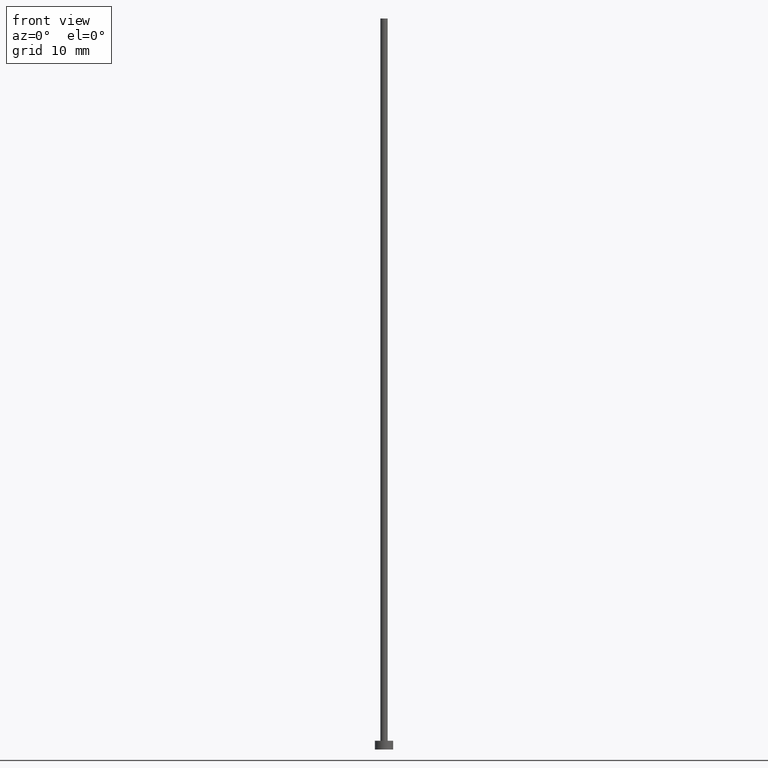
[diagram: clean part render]
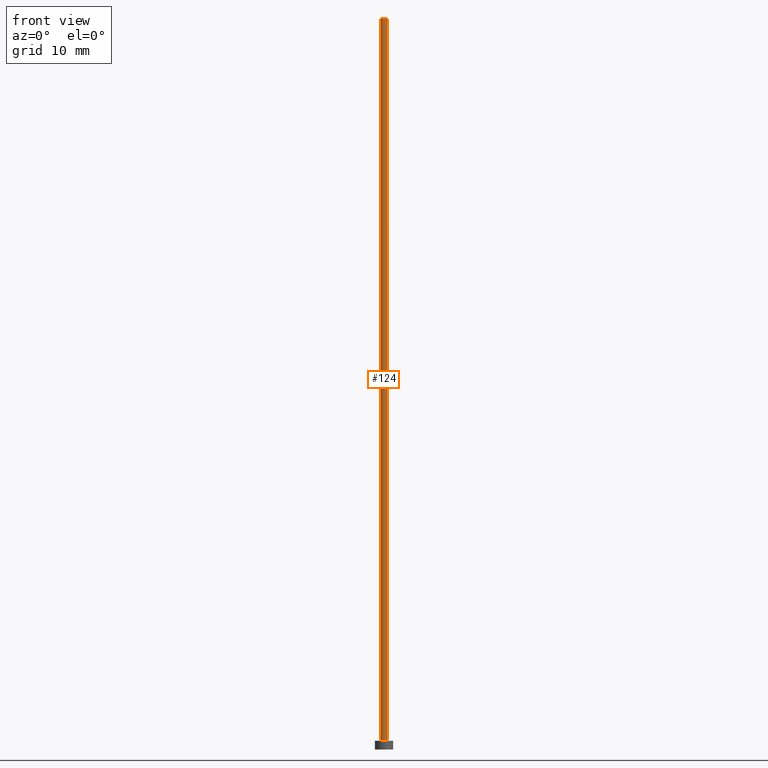
[diagram: same view with one face highlighted and labeled with its STEP entity id]
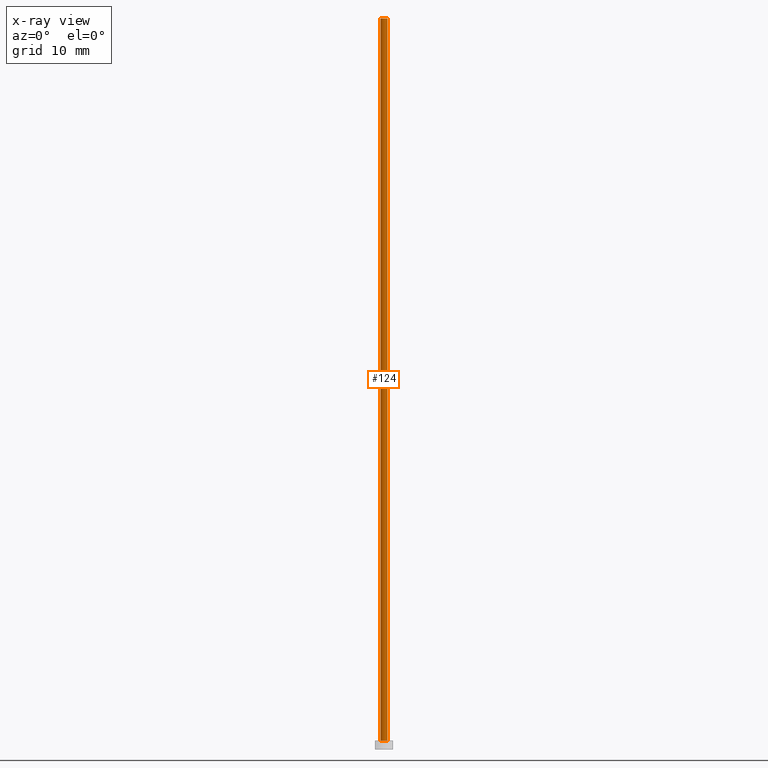
[diagram: x-ray of the same camera — body ghosted, the highlighted face saturated]
A machine part, front view. The second image highlights one B-rep face of the part: STEP entity #124.
The next image is the same camera in x-ray: the body ghosted, the highlighted face saturated — about 0% of this face is hidden behind the body in this view.
In plain terms, the highlighted cylindrical surface (edge-blend (fillet) strip) has radius 0.5 mm, axis along (-0, -0, -1).
Its self-contained STEP definition (entity closure, byte-faithful):
#12 = CARTESIAN_POINT ( 'NONE',  ( 0.000000000000000000, 0.000000000000000000, 1.199999999999999956 ) ) ;
#31 = VECTOR ( 'NONE', #133, 1000.000000000000000 ) ;
#43 = ORIENTED_EDGE ( 'NONE', *, *, #221, .F. ) ;
#48 = ORIENTED_EDGE ( 'NONE', *, *, #174, .T. ) ;
#49 = DIRECTION ( 'NONE',  ( 0.000000000000000000, 0.000000000000000000, 1.000000000000000000 ) ) ;
#52 = CARTESIAN_POINT ( 'NONE',  ( 0.000000000000000000, 0.000000000000000000, 100.0000000000000000 ) ) ;
#53 = CARTESIAN_POINT ( 'NONE',  ( 0.000000000000000000, 0.000000000000000000, 100.0000000000000000 ) ) ;
#54 = DIRECTION ( 'NONE',  ( 1.000000000000000000, 0.000000000000000000, 0.000000000000000000 ) ) ;
#65 = EDGE_CURVE ( 'NONE', #204, #239, #111, .T. ) ;
#73 = FACE_OUTER_BOUND ( 'NONE', #243, .T. ) ;
#79 = DIRECTION ( 'NONE',  ( -0.000000000000000000, -0.000000000000000000, -1.000000000000000000 ) ) ;
#91 = CARTESIAN_POINT ( 'NONE',  ( -0.5000000000000000000, 0.000000000000000000, 100.0000000000000000 ) ) ;
#99 = CIRCLE ( 'NONE', #167, 0.5000000000000000000 ) ;
#110 = LINE ( 'NONE', #188, #143 ) ;
#111 = CIRCLE ( 'NONE', #116, 0.5000000000000000000 ) ;
#114 = LINE ( 'NONE', #155, #31 ) ;
#116 = AXIS2_PLACEMENT_3D ( 'NONE', #12, #49, #54 ) ;
#124 = ADVANCED_FACE ( 'NONE', ( #73 ), #154, .T. ) ;
#132 = CARTESIAN_POINT ( 'NONE',  ( 0.5000000000000000000, 6.123233995736766036E-17, 100.0000000000000000 ) ) ;
#133 = DIRECTION ( 'NONE',  ( -0.000000000000000000, -0.000000000000000000, -1.000000000000000000 ) ) ;
#143 = VECTOR ( 'NONE', #186, 1000.000000000000000 ) ;
#149 = DIRECTION ( 'NONE',  ( -1.000000000000000000, 0.000000000000000000, 0.000000000000000000 ) ) ;
#154 = CYLINDRICAL_SURFACE ( 'NONE', #195, 0.5000000000000000000 ) ;
#155 = CARTESIAN_POINT ( 'NONE',  ( 0.5000000000000000000, 6.123233995736766036E-17, 100.0000000000000000 ) ) ;
#160 = CARTESIAN_POINT ( 'NONE',  ( 0.5000000000000000000, 6.123233995736766036E-17, 1.199999999999999956 ) ) ;
#163 = ORIENTED_EDGE ( 'NONE', *, *, #182, .F. ) ;
#167 = AXIS2_PLACEMENT_3D ( 'NONE', #52, #231, #209 ) ;
#170 = CARTESIAN_POINT ( 'NONE',  ( -0.5000000000000000000, 0.000000000000000000, 1.199999999999999956 ) ) ;
#174 = EDGE_CURVE ( 'NONE', #185, #204, #110, .T. ) ;
#182 = EDGE_CURVE ( 'NONE', #183, #239, #114, .T. ) ;
#183 = VERTEX_POINT ( 'NONE', #132 ) ;
#185 = VERTEX_POINT ( 'NONE', #91 ) ;
#186 = DIRECTION ( 'NONE',  ( -0.000000000000000000, -0.000000000000000000, -1.000000000000000000 ) ) ;
#188 = CARTESIAN_POINT ( 'NONE',  ( -0.5000000000000000000, 0.000000000000000000, 100.0000000000000000 ) ) ;
#195 = AXIS2_PLACEMENT_3D ( 'NONE', #53, #79, #149 ) ;
#204 = VERTEX_POINT ( 'NONE', #170 ) ;
#209 = DIRECTION ( 'NONE',  ( 1.000000000000000000, 0.000000000000000000, 0.000000000000000000 ) ) ;
#220 = ORIENTED_EDGE ( 'NONE', *, *, #65, .T. ) ;
#221 = EDGE_CURVE ( 'NONE', #185, #183, #99, .T. ) ;
#231 = DIRECTION ( 'NONE',  ( 0.000000000000000000, 0.000000000000000000, 1.000000000000000000 ) ) ;
#239 = VERTEX_POINT ( 'NONE', #160 ) ;
#243 = EDGE_LOOP ( 'NONE', ( #163, #43, #48, #220 ) ) ;